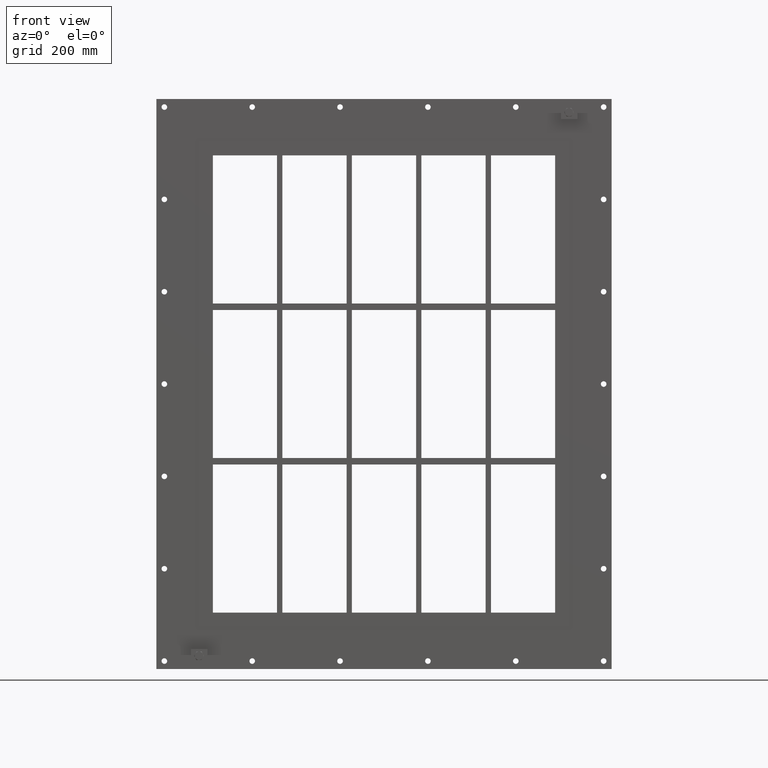
[diagram: clean part render]
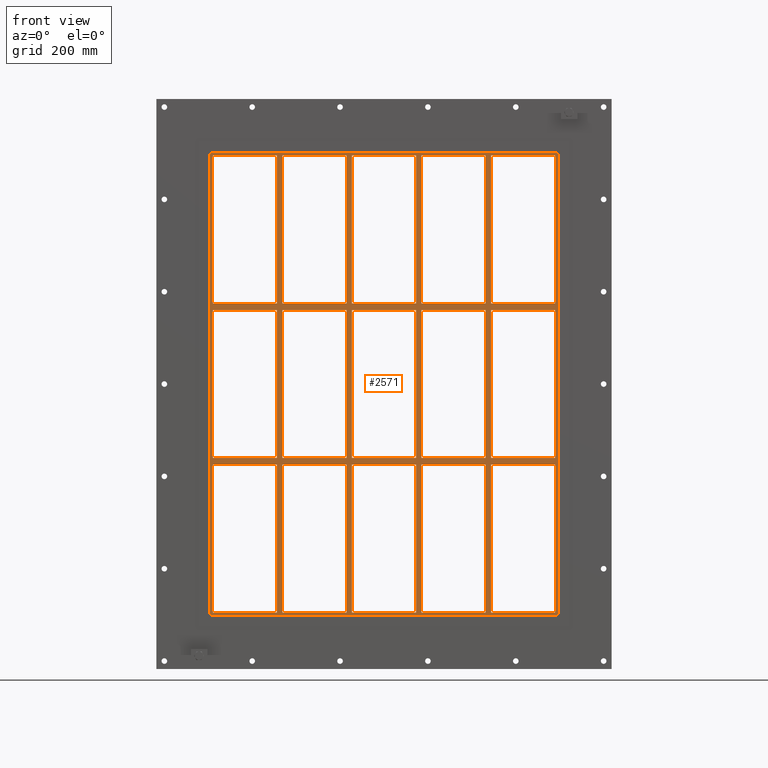
[diagram: same view with one face highlighted and labeled with its STEP entity id]
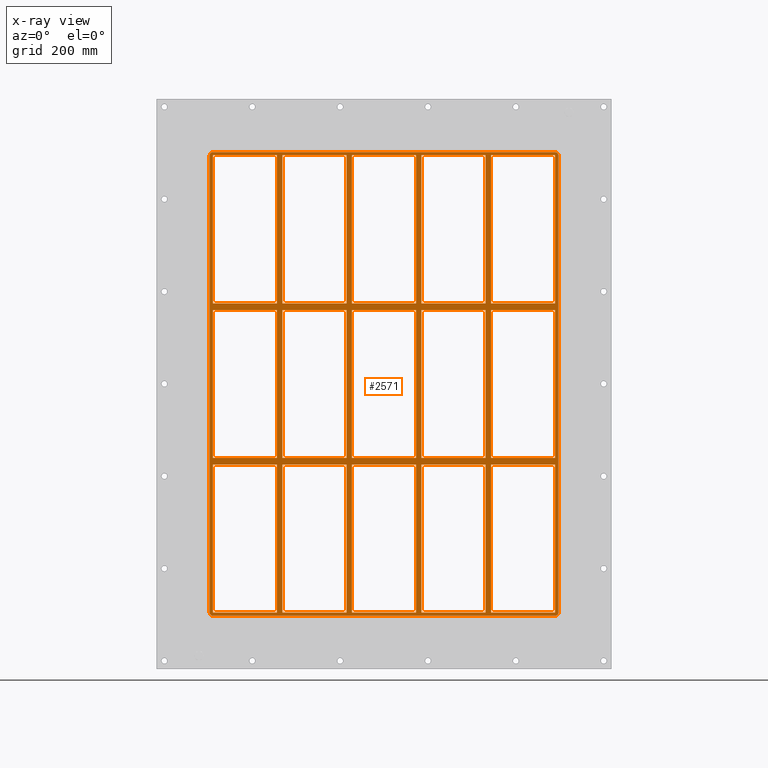
[diagram: x-ray of the same camera — body ghosted, the highlighted face saturated]
A machine part, front view. The second image highlights one B-rep face of the part: STEP entity #2571.
The next image is the same camera in x-ray: the body ghosted, the highlighted face saturated — about 0% of this face is hidden behind the body in this view.
In plain terms, the highlighted planar face has unit normal (0, 1, 0).
Its self-contained STEP definition (entity closure, byte-faithful):
#689=CARTESIAN_POINT('',(-200.74999999999892,-3.0,138.9999999999894));
#690=VERTEX_POINT('',#689);
#699=CARTESIAN_POINT('',(-321.24999999999721,-3.0,138.99999999998954));
#700=VERTEX_POINT('',#699);
#701=CARTESIAN_POINT('',(-200.74999999999886,-3.0,138.99999999998943));
#702=DIRECTION('',(-1.0,0.0,0.0));
#703=VECTOR('',#702,120.49999999999829);
#704=LINE('',#701,#703);
#705=EDGE_CURVE('',#690,#700,#704,.T.);
#729=CARTESIAN_POINT('',(-70.249999999998849,-3.0,138.99999999998931));
#730=VERTEX_POINT('',#729);
#739=CARTESIAN_POINT('',(-190.75000000000728,-3.0,138.99999999998943));
#740=VERTEX_POINT('',#739);
#741=CARTESIAN_POINT('',(-70.249999999998863,-3.0,138.99999999998931));
#742=DIRECTION('',(-1.0,0.0,0.0));
#743=VECTOR('',#742,120.50000000000841);
#744=LINE('',#741,#743);
#745=EDGE_CURVE('',#730,#740,#744,.T.);
#769=CARTESIAN_POINT('',(60.250000000001087,-3.0,138.99999999998923));
#770=VERTEX_POINT('',#769);
#779=CARTESIAN_POINT('',(-60.250000000007304,-3.0,138.99999999998931));
#780=VERTEX_POINT('',#779);
#781=CARTESIAN_POINT('',(60.25000000000108,-3.0,138.99999999998923));
#782=DIRECTION('',(-1.0,0.0,0.0));
#783=VECTOR('',#782,120.50000000000836);
#784=LINE('',#781,#783);
#785=EDGE_CURVE('',#770,#780,#784,.T.);
#811=CARTESIAN_POINT('',(200.74999999999278,-3.0,138.99999999998911));
#812=VERTEX_POINT('',#811);
#827=CARTESIAN_POINT('',(321.25,-3.0,138.999999999989));
#828=VERTEX_POINT('',#827);
#835=CARTESIAN_POINT('',(321.25,-3.0,138.999999999989));
#836=DIRECTION('',(-1.0,0.0,0.0));
#837=VECTOR('',#836,120.50000000000722);
#838=LINE('',#835,#837);
#839=EDGE_CURVE('',#828,#812,#838,.T.);
#849=CARTESIAN_POINT('',(190.75000000000117,-3.0,138.99999999998911));
#850=VERTEX_POINT('',#849);
#859=CARTESIAN_POINT('',(70.249999999992738,-3.0,138.99999999998923));
#860=VERTEX_POINT('',#859);
#861=CARTESIAN_POINT('',(190.75000000000117,-3.0,138.99999999998911));
#862=DIRECTION('',(-1.0,0.0,0.0));
#863=VECTOR('',#862,120.50000000000844);
#864=LINE('',#861,#863);
#865=EDGE_CURVE('',#850,#860,#864,.T.);
#891=CARTESIAN_POINT('',(-200.74999999999892,-3.0,150.99999999999909));
#892=VERTEX_POINT('',#891);
#907=CARTESIAN_POINT('',(-321.24999999999721,-3.0,150.99999999999909));
#908=VERTEX_POINT('',#907);
#915=CARTESIAN_POINT('',(-321.24999999999721,-3.0,150.99999999999909));
#916=DIRECTION('',(1.0,0.0,0.0));
#917=VECTOR('',#916,120.49999999999829);
#918=LINE('',#915,#917);
#919=EDGE_CURVE('',#908,#892,#918,.T.);
#929=CARTESIAN_POINT('',(200.74999999999278,-3.0,150.99999999999909));
#930=VERTEX_POINT('',#929);
#939=CARTESIAN_POINT('',(321.2499999999992,-3.0,150.99999999999909));
#940=VERTEX_POINT('',#939);
#941=CARTESIAN_POINT('',(200.74999999999278,-3.0,150.99999999999909));
#942=DIRECTION('',(1.0,0.0,0.0));
#943=VECTOR('',#942,120.50000000000648);
#944=LINE('',#941,#943);
#945=EDGE_CURVE('',#930,#940,#944,.T.);
#971=CARTESIAN_POINT('',(-70.24999999999892,-3.0,150.99999999999909));
#972=VERTEX_POINT('',#971);
#987=CARTESIAN_POINT('',(-190.75000000000728,-3.0,150.99999999999909));
#988=VERTEX_POINT('',#987);
#995=CARTESIAN_POINT('',(-190.75000000000728,-3.0,150.99999999999909));
#996=DIRECTION('',(1.0,0.0,0.0));
#997=VECTOR('',#996,120.50000000000836);
#998=LINE('',#995,#997);
#999=EDGE_CURVE('',#988,#972,#998,.T.);
#1011=CARTESIAN_POINT('',(60.250000000001123,-3.0,150.99999999999909));
#1012=VERTEX_POINT('',#1011);
#1027=CARTESIAN_POINT('',(-60.250000000007269,-3.0,150.99999999999909));
#1028=VERTEX_POINT('',#1027);
#1035=CARTESIAN_POINT('',(-60.250000000007276,-3.0,150.99999999999909));
#1036=DIRECTION('',(1.0,0.0,0.0));
#1037=VECTOR('',#1036,120.50000000000841);
#1038=LINE('',#1035,#1037);
#1039=EDGE_CURVE('',#1028,#1012,#1038,.T.);
#1051=CARTESIAN_POINT('',(190.75000000000117,-3.0,150.99999999999909));
#1052=VERTEX_POINT('',#1051);
#1067=CARTESIAN_POINT('',(70.249999999992738,-3.0,150.99999999999909));
#1068=VERTEX_POINT('',#1067);
#1075=CARTESIAN_POINT('',(70.249999999992781,-3.0,150.99999999999909));
#1076=DIRECTION('',(1.0,0.0,0.0));
#1077=VECTOR('',#1076,120.50000000000841);
#1078=LINE('',#1075,#1077);
#1079=EDGE_CURVE('',#1068,#1052,#1078,.T.);
#1098=CARTESIAN_POINT('',(-321.24999999999994,-3.0,429.00000000000006));
#1099=VERTEX_POINT('',#1098);
#1106=CARTESIAN_POINT('',(-321.25,-3.0,150.99999999999909));
#1107=DIRECTION('',(0.0,0.0,1.0));
#1108=VECTOR('',#1107,278.00000000000102);
#1109=LINE('',#1106,#1108);
#1110=EDGE_CURVE('',#908,#1099,#1109,.T.);
#1129=CARTESIAN_POINT('',(321.2499999999992,-3.0,-139.00000000000091));
#1130=VERTEX_POINT('',#1129);
#1137=CARTESIAN_POINT('',(321.25000000000006,-3.0,138.999999999989));
#1138=DIRECTION('',(0.0,0.0,-1.0));
#1139=VECTOR('',#1138,277.99999999998988);
#1140=LINE('',#1137,#1139);
#1141=EDGE_CURVE('',#828,#1130,#1140,.T.);
#1152=CARTESIAN_POINT('',(321.25000000000006,-3.0,429.00000000000006));
#1153=VERTEX_POINT('',#1152);
#1154=CARTESIAN_POINT('',(321.25000000000006,-3.0,429.00000000000006));
#1155=DIRECTION('',(0.0,0.0,-1.0));
#1156=VECTOR('',#1155,278.00000000000097);
#1157=LINE('',#1154,#1156);
#1158=EDGE_CURVE('',#1153,#940,#1157,.T.);
#1183=CARTESIAN_POINT('',(190.75000000000108,-3.0,429.00000000000006));
#1184=VERTEX_POINT('',#1183);
#1185=CARTESIAN_POINT('',(190.75000000000117,-3.0,150.99999999999909));
#1186=DIRECTION('',(0.0,0.0,1.0));
#1187=VECTOR('',#1186,278.00000000000091);
#1188=LINE('',#1185,#1187);
#1189=EDGE_CURVE('',#1052,#1184,#1188,.T.);
#1222=CARTESIAN_POINT('',(200.74999999999278,-3.0,429.00000000000006));
#1223=VERTEX_POINT('',#1222);
#1230=CARTESIAN_POINT('',(200.74999999999278,-3.0,429.00000000000006));
#1231=DIRECTION('',(0.0,0.0,-1.0));
#1232=VECTOR('',#1231,278.00000000000097);
#1233=LINE('',#1230,#1232);
#1234=EDGE_CURVE('',#1223,#930,#1233,.T.);
#1245=CARTESIAN_POINT('',(60.250000000001052,-3.0,429.00000000000006));
#1246=VERTEX_POINT('',#1245);
#1247=CARTESIAN_POINT('',(60.250000000001094,-3.0,150.99999999999909));
#1248=DIRECTION('',(0.0,0.0,1.0));
#1249=VECTOR('',#1248,278.00000000000091);
#1250=LINE('',#1247,#1249);
#1251=EDGE_CURVE('',#1012,#1246,#1250,.T.);
#1284=CARTESIAN_POINT('',(70.249999999992738,-3.0,429.00000000000006));
#1285=VERTEX_POINT('',#1284);
#1292=CARTESIAN_POINT('',(70.249999999992738,-3.0,429.00000000000006));
#1293=DIRECTION('',(0.0,0.0,-1.0));
#1294=VECTOR('',#1293,278.00000000000097);
#1295=LINE('',#1292,#1294);
#1296=EDGE_CURVE('',#1285,#1068,#1295,.T.);
#1307=CARTESIAN_POINT('',(-70.249999999998948,-3.0,429.00000000000006));
#1308=VERTEX_POINT('',#1307);
#1309=CARTESIAN_POINT('',(-70.249999999998906,-3.0,150.99999999999909));
#1310=DIRECTION('',(0.0,0.0,1.0));
#1311=VECTOR('',#1310,278.00000000000091);
#1312=LINE('',#1309,#1311);
#1313=EDGE_CURVE('',#972,#1308,#1312,.T.);
#1346=CARTESIAN_POINT('',(-60.250000000007269,-3.0,429.00000000000006));
#1347=VERTEX_POINT('',#1346);
#1354=CARTESIAN_POINT('',(-60.250000000007269,-3.0,429.00000000000006));
#1355=DIRECTION('',(0.0,0.0,-1.0));
#1356=VECTOR('',#1355,278.00000000000097);
#1357=LINE('',#1354,#1356);
#1358=EDGE_CURVE('',#1347,#1028,#1357,.T.);
#1369=CARTESIAN_POINT('',(-200.74999999999898,-3.0,429.00000000000006));
#1370=VERTEX_POINT('',#1369);
#1371=CARTESIAN_POINT('',(-200.74999999999889,-3.0,150.99999999999909));
#1372=DIRECTION('',(0.0,0.0,1.0));
#1373=VECTOR('',#1372,278.00000000000091);
#1374=LINE('',#1371,#1373);
#1375=EDGE_CURVE('',#892,#1370,#1374,.T.);
#1408=CARTESIAN_POINT('',(-200.74999999999889,-3.0,-139.00000000000091));
#1409=VERTEX_POINT('',#1408);
#1416=CARTESIAN_POINT('',(-200.74999999999886,-3.0,-139.00000000000091));
#1417=DIRECTION('',(0.0,0.0,1.0));
#1418=VECTOR('',#1417,277.99999999999022);
#1419=LINE('',#1416,#1418);
#1420=EDGE_CURVE('',#1409,#690,#1419,.T.);
#1439=CARTESIAN_POINT('',(-190.75000000000728,-3.0,429.00000000000006));
#1440=VERTEX_POINT('',#1439);
#1447=CARTESIAN_POINT('',(-190.75000000000728,-3.0,429.00000000000006));
#1448=DIRECTION('',(0.0,0.0,-1.0));
#1449=VECTOR('',#1448,278.00000000000097);
#1450=LINE('',#1447,#1449);
#1451=EDGE_CURVE('',#1440,#988,#1450,.T.);
#1875=CARTESIAN_POINT('',(190.75000000000119,-3.0,-139.00000000000091));
#1876=VERTEX_POINT('',#1875);
#1883=CARTESIAN_POINT('',(190.75000000000119,-3.0,-139.00000000000091));
#1884=DIRECTION('',(0.0,0.0,1.0));
#1885=VECTOR('',#1884,277.99999999999);
#1886=LINE('',#1883,#1885);
#1887=EDGE_CURVE('',#1876,#850,#1886,.T.);
#1897=CARTESIAN_POINT('',(190.75000000000119,-3.0,-151.00000000001089));
#1898=VERTEX_POINT('',#1897);
#1906=CARTESIAN_POINT('',(190.75000000000125,-3.0,-429.00000000000023));
#1907=VERTEX_POINT('',#1906);
#1914=CARTESIAN_POINT('',(190.75000000000125,-3.0,-429.00000000000023));
#1915=DIRECTION('',(0.0,0.0,1.0));
#1916=VECTOR('',#1915,277.99999999998931);
#1917=LINE('',#1914,#1916);
#1918=EDGE_CURVE('',#1907,#1898,#1917,.T.);
#1929=CARTESIAN_POINT('',(200.74999999999278,-3.0,-139.00000000000091));
#1930=VERTEX_POINT('',#1929);
#1931=CARTESIAN_POINT('',(200.74999999999278,-3.0,138.99999999998914));
#1932=DIRECTION('',(0.0,0.0,-1.0));
#1933=VECTOR('',#1932,277.99999999999);
#1934=LINE('',#1931,#1933);
#1935=EDGE_CURVE('',#812,#1930,#1934,.T.);
#1952=CARTESIAN_POINT('',(200.74999999999278,-3.0,-151.00000000001097));
#1953=VERTEX_POINT('',#1952);
#1960=CARTESIAN_POINT('',(200.74999999999278,-3.0,-428.99999999998192));
#1961=VERTEX_POINT('',#1960);
#1962=CARTESIAN_POINT('',(200.74999999999278,-3.0,-151.00000000001097));
#1963=DIRECTION('',(0.0,0.0,-1.0));
#1964=VECTOR('',#1963,277.9999999999709);
#1965=LINE('',#1962,#1964);
#1966=EDGE_CURVE('',#1953,#1961,#1965,.T.);
#1985=CARTESIAN_POINT('',(60.250000000001151,-3.0,-139.00000000000091));
#1986=VERTEX_POINT('',#1985);
#1993=CARTESIAN_POINT('',(60.250000000001144,-3.0,-139.00000000000091));
#1994=DIRECTION('',(0.0,0.0,1.0));
#1995=VECTOR('',#1994,277.99999999999011);
#1996=LINE('',#1993,#1995);
#1997=EDGE_CURVE('',#1986,#770,#1996,.T.);
#2007=CARTESIAN_POINT('',(60.250000000001151,-3.0,-151.00000000001077));
#2008=VERTEX_POINT('',#2007);
#2016=CARTESIAN_POINT('',(60.250000000001194,-3.0,-429.00000000000023));
#2017=VERTEX_POINT('',#2016);
#2024=CARTESIAN_POINT('',(60.250000000001194,-3.0,-429.00000000000023));
#2025=DIRECTION('',(0.0,0.0,1.0));
#2026=VECTOR('',#2025,277.99999999998943);
#2027=LINE('',#2024,#2026);
#2028=EDGE_CURVE('',#2017,#2008,#2027,.T.);
#2039=CARTESIAN_POINT('',(70.249999999992738,-3.0,-139.00000000000091));
#2040=VERTEX_POINT('',#2039);
#2041=CARTESIAN_POINT('',(70.249999999992738,-3.0,138.9999999999892));
#2042=DIRECTION('',(0.0,0.0,-1.0));
#2043=VECTOR('',#2042,277.99999999999005);
#2044=LINE('',#2041,#2043);
#2045=EDGE_CURVE('',#860,#2040,#2044,.T.);
#2062=CARTESIAN_POINT('',(70.249999999992738,-3.0,-151.0000000000108));
#2063=VERTEX_POINT('',#2062);
#2070=CARTESIAN_POINT('',(70.249999999992738,-3.0,-428.99999999998192));
#2071=VERTEX_POINT('',#2070);
#2072=CARTESIAN_POINT('',(70.249999999992738,-3.0,-151.00000000001086));
#2073=DIRECTION('',(0.0,0.0,-1.0));
#2074=VECTOR('',#2073,277.99999999997101);
#2075=LINE('',#2072,#2074);
#2076=EDGE_CURVE('',#2063,#2071,#2075,.T.);
#2095=CARTESIAN_POINT('',(-70.249999999998863,-3.0,-139.00000000000091));
#2096=VERTEX_POINT('',#2095);
#2103=CARTESIAN_POINT('',(-70.249999999998849,-3.0,-139.00000000000091));
#2104=DIRECTION('',(0.0,0.0,1.0));
#2105=VECTOR('',#2104,277.99999999999022);
#2106=LINE('',#2103,#2105);
#2107=EDGE_CURVE('',#2096,#730,#2106,.T.);
#2117=CARTESIAN_POINT('',(-70.249999999998863,-3.0,-151.00000000001069));
#2118=VERTEX_POINT('',#2117);
#2126=CARTESIAN_POINT('',(-70.249999999998806,-3.0,-429.00000000000023));
#2127=VERTEX_POINT('',#2126);
#2134=CARTESIAN_POINT('',(-70.249999999998806,-3.0,-429.00000000000023));
#2135=DIRECTION('',(0.0,0.0,1.0));
#2136=VECTOR('',#2135,277.99999999998954);
#2137=LINE('',#2134,#2136);
#2138=EDGE_CURVE('',#2127,#2118,#2137,.T.);
#2149=CARTESIAN_POINT('',(-60.250000000007269,-3.0,-139.00000000000091));
#2150=VERTEX_POINT('',#2149);
#2151=CARTESIAN_POINT('',(-60.250000000007269,-3.0,138.99999999998931));
#2152=DIRECTION('',(0.0,0.0,-1.0));
#2153=VECTOR('',#2152,277.99999999999017);
#2154=LINE('',#2151,#2153);
#2155=EDGE_CURVE('',#780,#2150,#2154,.T.);
#2172=CARTESIAN_POINT('',(-60.250000000007269,-3.0,-151.00000000001074));
#2173=VERTEX_POINT('',#2172);
#2180=CARTESIAN_POINT('',(-60.250000000007269,-3.0,-428.99999999998192));
#2181=VERTEX_POINT('',#2180);
#2182=CARTESIAN_POINT('',(-60.250000000007269,-3.0,-151.00000000001074));
#2183=DIRECTION('',(0.0,0.0,-1.0));
#2184=VECTOR('',#2183,277.99999999997112);
#2185=LINE('',#2182,#2184);
#2186=EDGE_CURVE('',#2173,#2181,#2185,.T.);
#2205=CARTESIAN_POINT('',(-190.75000000000728,-3.0,-428.99999999998192));
#2206=VERTEX_POINT('',#2205);
#2213=CARTESIAN_POINT('',(-70.249999999998806,-3.0,-429.00000000000023));
#2214=DIRECTION('',(-1.0,0.0,0.0));
#2215=VECTOR('',#2214,120.50000000000847);
#2216=LINE('',#2213,#2215);
#2217=EDGE_CURVE('',#2127,#2206,#2216,.T.);
#2230=CARTESIAN_POINT('',(60.250000000001194,-3.0,-429.00000000000023));
#2231=DIRECTION('',(-1.0,0.0,0.0));
#2232=VECTOR('',#2231,120.50000000000847);
#2233=LINE('',#2230,#2232);
#2234=EDGE_CURVE('',#2017,#2181,#2233,.T.);
#2247=CARTESIAN_POINT('',(190.75000000000125,-3.0,-429.00000000000023));
#2248=DIRECTION('',(-1.0,0.0,0.0));
#2249=VECTOR('',#2248,120.50000000000851);
#2250=LINE('',#2247,#2249);
#2251=EDGE_CURVE('',#1907,#2071,#2250,.T.);
#2262=CARTESIAN_POINT('',(321.25000000000006,-3.0,-429.00000000000023));
#2263=VERTEX_POINT('',#2262);
#2264=CARTESIAN_POINT('',(321.25000000000006,-3.0,-429.00000000000023));
#2265=DIRECTION('',(-1.0,0.0,0.0));
#2266=VECTOR('',#2265,120.50000000000728);
#2267=LINE('',#2264,#2266);
#2268=EDGE_CURVE('',#2263,#1961,#2267,.T.);
#2280=CARTESIAN_POINT('',(-7.118245E-014,-3.0,0.0));
#2281=DIRECTION('',(0.0,1.0,0.0));
#2282=DIRECTION('',(0.0,0.0,1.0));
#2283=AXIS2_PLACEMENT_3D('',#2280,#2281,#2282);
#2284=PLANE('',#2283);
#2285=CARTESIAN_POINT('',(-321.25,-3.0,-435.00000000000006));
#2286=VERTEX_POINT('',#2285);
#2287=CARTESIAN_POINT('',(-327.25000000000011,-3.0,-429.00000000000006));
#2288=VERTEX_POINT('',#2287);
#2289=CARTESIAN_POINT('',(-321.25,-3.0,-429.00000000000006));
#2290=DIRECTION('',(0.0,1.0,0.0));
#2291=DIRECTION('',(-0.707106781186556,0.0,-0.707106781186539));
#2292=AXIS2_PLACEMENT_3D('',#2289,#2290,#2291);
#2293=CIRCLE('',#2292,6.000000000000001);
#2294=EDGE_CURVE('',#2286,#2288,#2293,.T.);
#2295=ORIENTED_EDGE('',*,*,#2294,.F.);
#2296=CARTESIAN_POINT('',(321.25,-3.0,-435.00000000000006));
#2297=VERTEX_POINT('',#2296);
#2298=CARTESIAN_POINT('',(-321.25000000000006,-3.0,-435.00000000000006));
#2299=DIRECTION('',(1.0,0.0,0.0));
#2300=VECTOR('',#2299,642.5);
#2301=LINE('',#2298,#2300);
#2302=EDGE_CURVE('',#2286,#2297,#2301,.T.);
#2303=ORIENTED_EDGE('',*,*,#2302,.T.);
#2304=CARTESIAN_POINT('',(327.24999999999994,-3.0,-429.0));
#2305=VERTEX_POINT('',#2304);
#2306=CARTESIAN_POINT('',(321.25,-3.0,-429.00000000000006));
#2307=DIRECTION('',(0.0,1.0,0.0));
#2308=DIRECTION('',(0.707106781186548,0.0,-0.707106781186548));
#2309=AXIS2_PLACEMENT_3D('',#2306,#2307,#2308);
#2310=CIRCLE('',#2309,6.000000000000002);
#2311=EDGE_CURVE('',#2305,#2297,#2310,.T.);
#2312=ORIENTED_EDGE('',*,*,#2311,.F.);
#2313=CARTESIAN_POINT('',(327.24999999999994,-3.0,429.00000000000006));
#2314=VERTEX_POINT('',#2313);
#2315=CARTESIAN_POINT('',(327.24999999999994,-3.0,-428.99999999999994));
#2316=DIRECTION('',(0.0,0.0,1.0));
#2317=VECTOR('',#2316,858.0);
#2318=LINE('',#2315,#2317);
#2319=EDGE_CURVE('',#2305,#2314,#2318,.T.);
#2320=ORIENTED_EDGE('',*,*,#2319,.T.);
#2321=CARTESIAN_POINT('',(321.24999999999989,-3.0,435.00000000000006));
#2322=VERTEX_POINT('',#2321);
#2323=CARTESIAN_POINT('',(321.24999999999989,-3.0,429.00000000000006));
#2324=DIRECTION('',(0.0,1.0,0.0));
#2325=DIRECTION('',(0.707106781186556,0.0,0.707106781186539));
#2326=AXIS2_PLACEMENT_3D('',#2323,#2324,#2325);
#2327=CIRCLE('',#2326,6.000000000000001);
#2328=EDGE_CURVE('',#2322,#2314,#2327,.T.);
#2329=ORIENTED_EDGE('',*,*,#2328,.F.);
#2330=CARTESIAN_POINT('',(-321.25000000000011,-3.0,435.00000000000006));
#2331=VERTEX_POINT('',#2330);
#2332=CARTESIAN_POINT('',(321.24999999999989,-3.0,435.00000000000006));
#2333=DIRECTION('',(-1.0,0.0,0.0));
#2334=VECTOR('',#2333,642.5);
#2335=LINE('',#2332,#2334);
#2336=EDGE_CURVE('',#2322,#2331,#2335,.T.);
#2337=ORIENTED_EDGE('',*,*,#2336,.T.);
#2338=CARTESIAN_POINT('',(-327.25000000000011,-3.0,429.0));
#2339=VERTEX_POINT('',#2338);
#2340=CARTESIAN_POINT('',(-321.25000000000011,-3.0,429.00000000000006));
#2341=DIRECTION('',(0.0,1.0,0.0));
#2342=DIRECTION('',(-0.707106781186548,0.0,0.707106781186548));
#2343=AXIS2_PLACEMENT_3D('',#2340,#2341,#2342);
#2344=CIRCLE('',#2343,6.000000000000002);
#2345=EDGE_CURVE('',#2339,#2331,#2344,.T.);
#2346=ORIENTED_EDGE('',*,*,#2345,.F.);
#2347=CARTESIAN_POINT('',(-327.25000000000011,-3.0,428.99999999999994));
#2348=DIRECTION('',(0.0,0.0,-1.0));
#2349=VECTOR('',#2348,858.0);
#2350=LINE('',#2347,#2349);
#2351=EDGE_CURVE('',#2339,#2288,#2350,.T.);
#2352=ORIENTED_EDGE('',*,*,#2351,.T.);
#2353=EDGE_LOOP('',(#2295,#2303,#2312,#2320,#2329,#2337,#2346,#2352));
#2354=FACE_OUTER_BOUND('',#2353,.T.);
#2355=ORIENTED_EDGE('',*,*,#1110,.T.);
#2356=CARTESIAN_POINT('',(-321.24999999999989,-3.0,429.00000000000006));
#2357=DIRECTION('',(1.0,0.0,0.0));
#2358=VECTOR('',#2357,120.50000000000094);
#2359=LINE('',#2356,#2358);
#2360=EDGE_CURVE('',#1099,#1370,#2359,.T.);
#2361=ORIENTED_EDGE('',*,*,#2360,.T.);
#2362=ORIENTED_EDGE('',*,*,#1375,.F.);
#2363=ORIENTED_EDGE('',*,*,#919,.F.);
#2364=EDGE_LOOP('',(#2355,#2361,#2362,#2363));
#2365=FACE_BOUND('',#2364,.T.);
#2366=ORIENTED_EDGE('',*,*,#1141,.T.);
#2367=CARTESIAN_POINT('',(200.74999999999278,-3.0,-139.00000000000091));
#2368=DIRECTION('',(1.0,0.0,0.0));
#2369=VECTOR('',#2368,120.50000000000648);
#2370=LINE('',#2367,#2369);
#2371=EDGE_CURVE('',#1930,#1130,#2370,.T.);
#2372=ORIENTED_EDGE('',*,*,#2371,.F.);
#2373=ORIENTED_EDGE('',*,*,#1935,.F.);
#2374=ORIENTED_EDGE('',*,*,#839,.F.);
#2375=EDGE_LOOP('',(#2366,#2372,#2373,#2374));
#2376=FACE_BOUND('',#2375,.T.);
#2377=ORIENTED_EDGE('',*,*,#1887,.F.);
#2378=CARTESIAN_POINT('',(70.249999999992781,-3.0,-139.00000000000091));
#2379=DIRECTION('',(1.0,0.0,0.0));
#2380=VECTOR('',#2379,120.50000000000847);
#2381=LINE('',#2378,#2380);
#2382=EDGE_CURVE('',#2040,#1876,#2381,.T.);
#2383=ORIENTED_EDGE('',*,*,#2382,.F.);
#2384=ORIENTED_EDGE('',*,*,#2045,.F.);
#2385=ORIENTED_EDGE('',*,*,#865,.F.);
#2386=EDGE_LOOP('',(#2377,#2383,#2384,#2385));
#2387=FACE_BOUND('',#2386,.T.);
#2388=ORIENTED_EDGE('',*,*,#1997,.F.);
#2389=CARTESIAN_POINT('',(-60.250000000007276,-3.0,-139.00000000000091));
#2390=DIRECTION('',(1.0,0.0,0.0));
#2391=VECTOR('',#2390,120.50000000000841);
#2392=LINE('',#2389,#2391);
#2393=EDGE_CURVE('',#2150,#1986,#2392,.T.);
#2394=ORIENTED_EDGE('',*,*,#2393,.F.);
#2395=ORIENTED_EDGE('',*,*,#2155,.F.);
#2396=ORIENTED_EDGE('',*,*,#785,.F.);
#2397=EDGE_LOOP('',(#2388,#2394,#2395,#2396));
#2398=FACE_BOUND('',#2397,.T.);
#2399=ORIENTED_EDGE('',*,*,#2107,.F.);
#2400=CARTESIAN_POINT('',(-190.75000000000728,-3.0,-139.00000000000091));
#2401=VERTEX_POINT('',#2400);
#2402=CARTESIAN_POINT('',(-190.75000000000728,-3.0,-139.00000000000091));
#2403=DIRECTION('',(1.0,0.0,0.0));
#2404=VECTOR('',#2403,120.50000000000844);
#2405=LINE('',#2402,#2404);
#2406=EDGE_CURVE('',#2401,#2096,#2405,.T.);
#2407=ORIENTED_EDGE('',*,*,#2406,.F.);
#2408=CARTESIAN_POINT('',(-190.75000000000728,-3.0,138.99999999998943));
#2409=DIRECTION('',(0.0,0.0,-1.0));
#2410=VECTOR('',#2409,277.99999999999028);
#2411=LINE('',#2408,#2410);
#2412=EDGE_CURVE('',#740,#2401,#2411,.T.);
#2413=ORIENTED_EDGE('',*,*,#2412,.F.);
#2414=ORIENTED_EDGE('',*,*,#745,.F.);
#2415=EDGE_LOOP('',(#2399,#2407,#2413,#2414));
#2416=FACE_BOUND('',#2415,.T.);
#2417=ORIENTED_EDGE('',*,*,#1079,.F.);
#2418=ORIENTED_EDGE('',*,*,#1296,.F.);
#2419=CARTESIAN_POINT('',(70.249999999992752,-3.0,429.00000000000006));
#2420=DIRECTION('',(1.0,0.0,0.0));
#2421=VECTOR('',#2420,120.50000000000836);
#2422=LINE('',#2419,#2421);
#2423=EDGE_CURVE('',#1285,#1184,#2422,.T.);
#2424=ORIENTED_EDGE('',*,*,#2423,.T.);
#2425=ORIENTED_EDGE('',*,*,#1189,.F.);
#2426=EDGE_LOOP('',(#2417,#2418,#2424,#2425));
#2427=FACE_BOUND('',#2426,.T.);
#2428=ORIENTED_EDGE('',*,*,#1039,.F.);
#2429=ORIENTED_EDGE('',*,*,#1358,.F.);
#2430=CARTESIAN_POINT('',(-60.250000000007262,-3.0,429.00000000000006));
#2431=DIRECTION('',(1.0,0.0,0.0));
#2432=VECTOR('',#2431,120.50000000000831);
#2433=LINE('',#2430,#2432);
#2434=EDGE_CURVE('',#1347,#1246,#2433,.T.);
#2435=ORIENTED_EDGE('',*,*,#2434,.T.);
#2436=ORIENTED_EDGE('',*,*,#1251,.F.);
#2437=EDGE_LOOP('',(#2428,#2429,#2435,#2436));
#2438=FACE_BOUND('',#2437,.T.);
#2439=ORIENTED_EDGE('',*,*,#999,.F.);
#2440=ORIENTED_EDGE('',*,*,#1451,.F.);
#2441=CARTESIAN_POINT('',(-190.75000000000728,-3.0,429.00000000000006));
#2442=DIRECTION('',(1.0,0.0,0.0));
#2443=VECTOR('',#2442,120.50000000000833);
#2444=LINE('',#2441,#2443);
#2445=EDGE_CURVE('',#1440,#1308,#2444,.T.);
#2446=ORIENTED_EDGE('',*,*,#2445,.T.);
#2447=ORIENTED_EDGE('',*,*,#1313,.F.);
#2448=EDGE_LOOP('',(#2439,#2440,#2446,#2447));
#2449=FACE_BOUND('',#2448,.T.);
#2450=ORIENTED_EDGE('',*,*,#705,.F.);
#2451=ORIENTED_EDGE('',*,*,#1420,.F.);
#2452=CARTESIAN_POINT('',(-321.24999999999721,-3.0,-139.00000000000091));
#2453=VERTEX_POINT('',#2452);
#2454=CARTESIAN_POINT('',(-321.24999999999721,-3.0,-139.00000000000091));
#2455=DIRECTION('',(1.0,0.0,0.0));
#2456=VECTOR('',#2455,120.49999999999835);
#2457=LINE('',#2454,#2456);
#2458=EDGE_CURVE('',#2453,#1409,#2457,.T.);
#2459=ORIENTED_EDGE('',*,*,#2458,.F.);
#2460=CARTESIAN_POINT('',(-321.25,-3.0,-139.00000000000091));
#2461=DIRECTION('',(0.0,0.0,1.0));
#2462=VECTOR('',#2461,277.99999999999045);
#2463=LINE('',#2460,#2462);
#2464=EDGE_CURVE('',#2453,#700,#2463,.T.);
#2465=ORIENTED_EDGE('',*,*,#2464,.T.);
#2466=EDGE_LOOP('',(#2450,#2451,#2459,#2465));
#2467=FACE_BOUND('',#2466,.T.);
#2468=ORIENTED_EDGE('',*,*,#945,.F.);
#2469=ORIENTED_EDGE('',*,*,#1234,.F.);
#2470=CARTESIAN_POINT('',(200.74999999999275,-3.0,429.00000000000006));
#2471=DIRECTION('',(1.0,0.0,0.0));
#2472=VECTOR('',#2471,120.50000000000736);
#2473=LINE('',#2470,#2472);
#2474=EDGE_CURVE('',#1223,#1153,#2473,.T.);
#2475=ORIENTED_EDGE('',*,*,#2474,.T.);
#2476=ORIENTED_EDGE('',*,*,#1158,.T.);
#2477=EDGE_LOOP('',(#2468,#2469,#2475,#2476));
#2478=FACE_BOUND('',#2477,.T.);
#2479=ORIENTED_EDGE('',*,*,#2251,.T.);
#2480=ORIENTED_EDGE('',*,*,#2076,.F.);
#2481=CARTESIAN_POINT('',(190.75000000000119,-3.0,-151.00000000001089));
#2482=DIRECTION('',(-1.0,0.0,0.0));
#2483=VECTOR('',#2482,120.50000000000847);
#2484=LINE('',#2481,#2483);
#2485=EDGE_CURVE('',#1898,#2063,#2484,.T.);
#2486=ORIENTED_EDGE('',*,*,#2485,.F.);
#2487=ORIENTED_EDGE('',*,*,#1918,.F.);
#2488=EDGE_LOOP('',(#2479,#2480,#2486,#2487));
#2489=FACE_BOUND('',#2488,.T.);
#2490=ORIENTED_EDGE('',*,*,#2234,.T.);
#2491=ORIENTED_EDGE('',*,*,#2186,.F.);
#2492=CARTESIAN_POINT('',(60.250000000001137,-3.0,-151.00000000001077));
#2493=DIRECTION('',(-1.0,0.0,0.0));
#2494=VECTOR('',#2493,120.50000000000841);
#2495=LINE('',#2492,#2494);
#2496=EDGE_CURVE('',#2008,#2173,#2495,.T.);
#2497=ORIENTED_EDGE('',*,*,#2496,.F.);
#2498=ORIENTED_EDGE('',*,*,#2028,.F.);
#2499=EDGE_LOOP('',(#2490,#2491,#2497,#2498));
#2500=FACE_BOUND('',#2499,.T.);
#2501=ORIENTED_EDGE('',*,*,#2217,.T.);
#2502=CARTESIAN_POINT('',(-190.75000000000728,-3.0,-151.00000000001057));
#2503=VERTEX_POINT('',#2502);
#2504=CARTESIAN_POINT('',(-190.75000000000728,-3.0,-151.00000000001063));
#2505=DIRECTION('',(0.0,0.0,-1.0));
#2506=VECTOR('',#2505,277.99999999997124);
#2507=LINE('',#2504,#2506);
#2508=EDGE_CURVE('',#2503,#2206,#2507,.T.);
#2509=ORIENTED_EDGE('',*,*,#2508,.F.);
#2510=CARTESIAN_POINT('',(-70.249999999998863,-3.0,-151.00000000001069));
#2511=DIRECTION('',(-1.0,0.0,0.0));
#2512=VECTOR('',#2511,120.50000000000841);
#2513=LINE('',#2510,#2512);
#2514=EDGE_CURVE('',#2118,#2503,#2513,.T.);
#2515=ORIENTED_EDGE('',*,*,#2514,.F.);
#2516=ORIENTED_EDGE('',*,*,#2138,.F.);
#2517=EDGE_LOOP('',(#2501,#2509,#2515,#2516));
#2518=FACE_BOUND('',#2517,.T.);
#2519=ORIENTED_EDGE('',*,*,#1966,.F.);
#2520=CARTESIAN_POINT('',(321.25,-3.0,-151.000000000011));
#2521=VERTEX_POINT('',#2520);
#2522=CARTESIAN_POINT('',(321.25,-3.0,-151.000000000011));
#2523=DIRECTION('',(-1.0,0.0,0.0));
#2524=VECTOR('',#2523,120.50000000000722);
#2525=LINE('',#2522,#2524);
#2526=EDGE_CURVE('',#2521,#1953,#2525,.T.);
#2527=ORIENTED_EDGE('',*,*,#2526,.F.);
#2528=CARTESIAN_POINT('',(321.25000000000006,-3.0,-151.000000000011));
#2529=DIRECTION('',(0.0,0.0,-1.0));
#2530=VECTOR('',#2529,277.9999999999892);
#2531=LINE('',#2528,#2530);
#2532=EDGE_CURVE('',#2521,#2263,#2531,.T.);
#2533=ORIENTED_EDGE('',*,*,#2532,.T.);
#2534=ORIENTED_EDGE('',*,*,#2268,.T.);
#2535=EDGE_LOOP('',(#2519,#2527,#2533,#2534));
#2536=FACE_BOUND('',#2535,.T.);
#2537=CARTESIAN_POINT('',(-200.74999999999889,-3.0,-151.00000000001057));
#2538=VERTEX_POINT('',#2537);
#2539=CARTESIAN_POINT('',(-321.24999999999721,-3.0,-151.00000000001046));
#2540=VERTEX_POINT('',#2539);
#2541=CARTESIAN_POINT('',(-200.74999999999886,-3.0,-151.00000000001057));
#2542=DIRECTION('',(-1.0,0.0,0.0));
#2543=VECTOR('',#2542,120.49999999999829);
#2544=LINE('',#2541,#2543);
#2545=EDGE_CURVE('',#2538,#2540,#2544,.T.);
#2546=ORIENTED_EDGE('',*,*,#2545,.F.);
#2547=CARTESIAN_POINT('',(-200.74999999999881,-3.0,-429.00000000000023));
#2548=VERTEX_POINT('',#2547);
#2549=CARTESIAN_POINT('',(-200.74999999999881,-3.0,-429.00000000000023));
#2550=DIRECTION('',(0.0,0.0,1.0));
#2551=VECTOR('',#2550,277.99999999998965);
#2552=LINE('',#2549,#2551);
#2553=EDGE_CURVE('',#2548,#2538,#2552,.T.);
#2554=ORIENTED_EDGE('',*,*,#2553,.F.);
#2555=CARTESIAN_POINT('',(-321.24999999999994,-3.0,-429.00000000000023));
#2556=VERTEX_POINT('',#2555);
#2557=CARTESIAN_POINT('',(-200.74999999999881,-3.0,-429.00000000000023));
#2558=DIRECTION('',(-1.0,0.0,0.0));
#2559=VECTOR('',#2558,120.50000000000114);
#2560=LINE('',#2557,#2559);
#2561=EDGE_CURVE('',#2548,#2556,#2560,.T.);
#2562=ORIENTED_EDGE('',*,*,#2561,.T.);
#2563=CARTESIAN_POINT('',(-321.25,-3.0,-429.00000000000023));
#2564=DIRECTION('',(0.0,0.0,1.0));
#2565=VECTOR('',#2564,277.99999999998977);
#2566=LINE('',#2563,#2565);
#2567=EDGE_CURVE('',#2556,#2540,#2566,.T.);
#2568=ORIENTED_EDGE('',*,*,#2567,.T.);
#2569=EDGE_LOOP('',(#2546,#2554,#2562,#2568));
#2570=FACE_BOUND('',#2569,.T.);
#2571=ADVANCED_FACE('',(#2354,#2365,#2376,#2387,#2398,#2416,#2427,#2438,#2449,#2467,#2478,#2489,#2500,#2518,#2536,#2570),#2284,.F.);